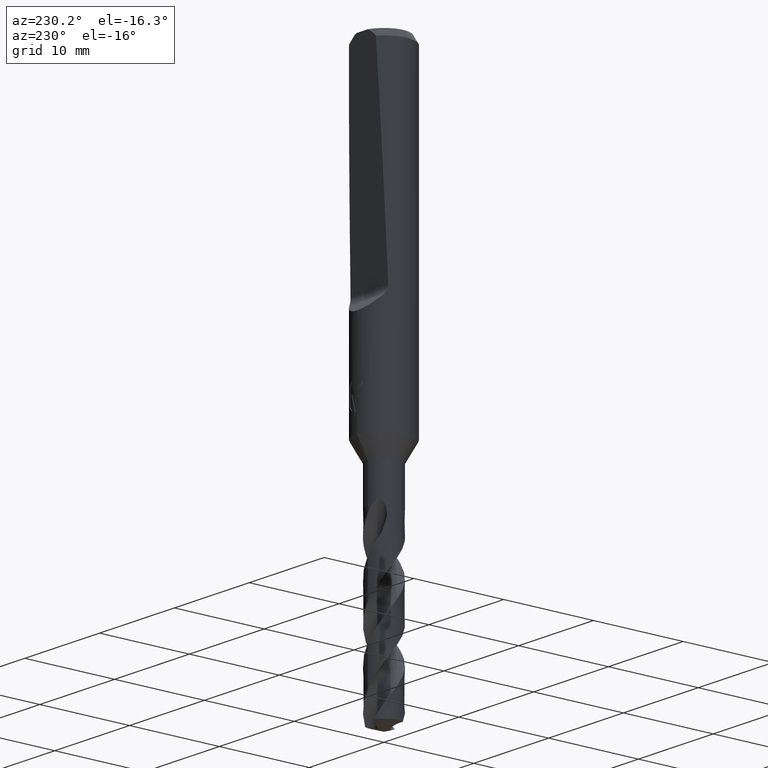
[diagram: clean part render]
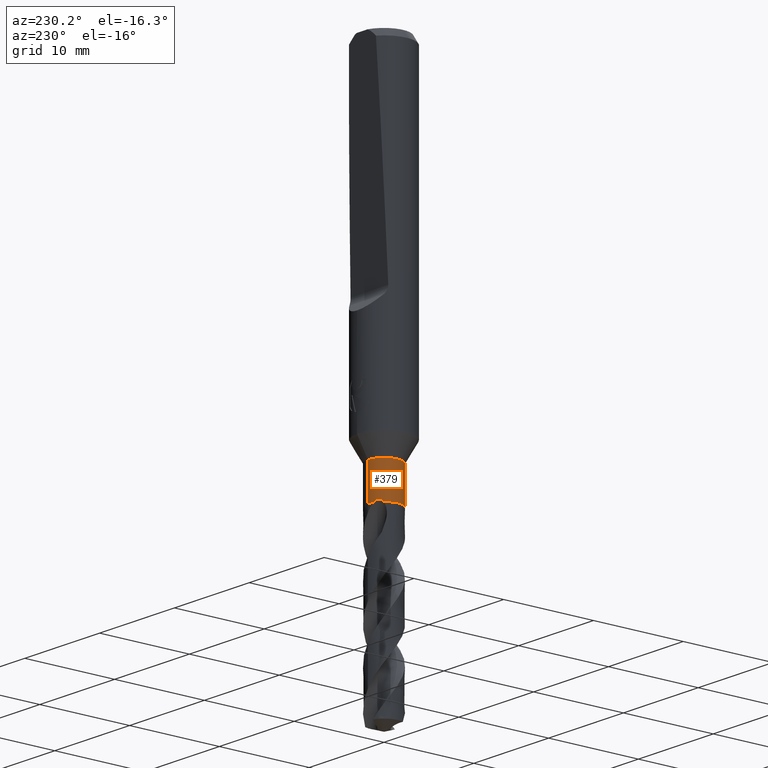
[diagram: same view with one face highlighted and labeled with its STEP entity id]
A machine part, auxiliary view. The second image highlights one B-rep face of the part: STEP entity #379.
In plain terms, the highlighted cylindrical surface (edge-blend (fillet) strip) has radius 1.8 mm, axis along (-0, -0, 1).
Its self-contained STEP definition (entity closure, byte-faithful):
#297=VERTEX_POINT('',#829);
#305=EDGE_CURVE('',#731,#297,#838,.T.);
#311=EDGE_CURVE('',#681,#567,#844,.T.);
#353=VERTEX_POINT('',#892);
#379=ADVANCED_FACE('',(#923),#924,.T.);
#399=EDGE_CURVE('',#589,#353,#947,.T.);
#505=EDGE_CURVE('',#731,#353,#1062,.T.);
#567=VERTEX_POINT('',#1128);
#589=VERTEX_POINT('',#1151);
#681=VERTEX_POINT('',#1250);
#689=EDGE_CURVE('',#681,#297,#1259,.T.);
#693=EDGE_CURVE('',#567,#589,#1263,.T.);
#731=VERTEX_POINT('',#1303);
#829=CARTESIAN_POINT('',(-1.36232813690845,1.17646166422351,-42.0));
#838=B_SPLINE_CURVE_WITH_KNOTS('',3,(#2000,#2001,#2002,#2003,#2004,#2005,#2006,#2007,#2008,#2009,#2010,#2011),.UNSPECIFIED.,.F.,.F.,(4,2,2,2,2,4),(0.0,0.338642702074881,0.544695434374056,0.714323512432213,0.883953178409015,1.06568958280745),.UNSPECIFIED.);
#844=LINE('',#2026,#2027);
#892=CARTESIAN_POINT('',(-2.20429143688028E-016,1.8,-42.0));
#923=FACE_OUTER_BOUND('',#2496,.T.);
#924=CYLINDRICAL_SURFACE('',#2497,1.8);
#947=LINE('',#2666,#2667);
#1062=CIRCLE('',#3270,1.8);
#1128=CARTESIAN_POINT('',(2.20429143688028E-016,-1.8,-38.0784609690827));
#1151=CARTESIAN_POINT('',(0.0,1.8,-38.0784609690827));
#1250=CARTESIAN_POINT('',(2.20429143688028E-016,-1.8,-42.0));
#1259=CIRCLE('',#4542,1.8);
#1263=CIRCLE('',#4559,1.8);
#1303=CARTESIAN_POINT('',(-0.616448164671872,1.69115098683491,-42.0));
#2000=CARTESIAN_POINT('',(-0.61644816467187,1.69115098683491,-42.0));
#2001=CARTESIAN_POINT('',(-0.694640453767459,1.662648804901,-41.9237393332579));
#2002=CARTESIAN_POINT('',(-0.782105737301139,1.62450629096775,-41.8523993744265));
#2003=CARTESIAN_POINT('',(-0.927696251525151,1.54380856037306,-41.7804804790781));
#2004=CARTESIAN_POINT('',(-0.984042190629808,1.50875784459478,-41.7630854935849));
#2005=CARTESIAN_POINT('',(-1.08594826290717,1.43662601094607,-41.7592739018827));
#2006=CARTESIAN_POINT('',(-1.12921301228496,1.40274410581327,-41.7680418979519));
#2007=CARTESIAN_POINT('',(-1.20984817770679,1.33382176210854,-41.8063005702076));
#2008=CARTESIAN_POINT('',(-1.24531700749883,1.30043961605129,-41.8348782561599));
#2009=CARTESIAN_POINT('',(-1.30993229002593,1.23544504212019,-41.907386705847));
#2010=CARTESIAN_POINT('',(-1.33823780476781,1.20435797253571,-41.9520094750689));
#2011=CARTESIAN_POINT('',(-1.36232813690845,1.17646166422351,-42.0));
#2026=CARTESIAN_POINT('',(2.20429143688028E-016,-1.8,-40.0392304845413));
#2027=VECTOR('',#5393,1.0);
#2496=EDGE_LOOP('',(#5547,#5548,#5549,#5550,#5551,#5552));
#2497=AXIS2_PLACEMENT_3D('',#5553,#5554,#5555);
#2666=CARTESIAN_POINT('',(-2.20429143688028E-016,1.8,-40.0392304845413));
#2667=VECTOR('',#5581,1.0);
#3270=AXIS2_PLACEMENT_3D('',#5708,#5709,#5710);
#4542=AXIS2_PLACEMENT_3D('',#5867,#5868,#5869);
#4559=AXIS2_PLACEMENT_3D('',#5870,#5871,#5872);
#5393=DIRECTION('',(-0.0,-0.0,1.0));
#5547=ORIENTED_EDGE('',*,*,#399,.T.);
#5548=ORIENTED_EDGE('',*,*,#505,.F.);
#5549=ORIENTED_EDGE('',*,*,#305,.T.);
#5550=ORIENTED_EDGE('',*,*,#689,.F.);
#5551=ORIENTED_EDGE('',*,*,#311,.T.);
#5552=ORIENTED_EDGE('',*,*,#693,.T.);
#5553=CARTESIAN_POINT('',(0.0,0.0,-40.0392304845413));
#5554=DIRECTION('',(-0.0,-0.0,1.0));
#5555=DIRECTION('',(0.0,1.0,0.0));
#5581=DIRECTION('',(0.0,0.0,-1.0));
#5708=CARTESIAN_POINT('',(0.0,0.0,-42.0));
#5709=DIRECTION('',(0.0,0.0,-1.0));
#5710=DIRECTION('',(0.0,1.0,0.0));
#5867=CARTESIAN_POINT('',(0.0,0.0,-42.0));
#5868=DIRECTION('',(0.0,0.0,-1.0));
#5869=DIRECTION('',(0.0,1.0,0.0));
#5870=CARTESIAN_POINT('',(0.0,0.0,-38.0784609690827));
#5871=DIRECTION('',(0.0,0.0,-1.0));
#5872=DIRECTION('',(0.0,1.0,0.0));